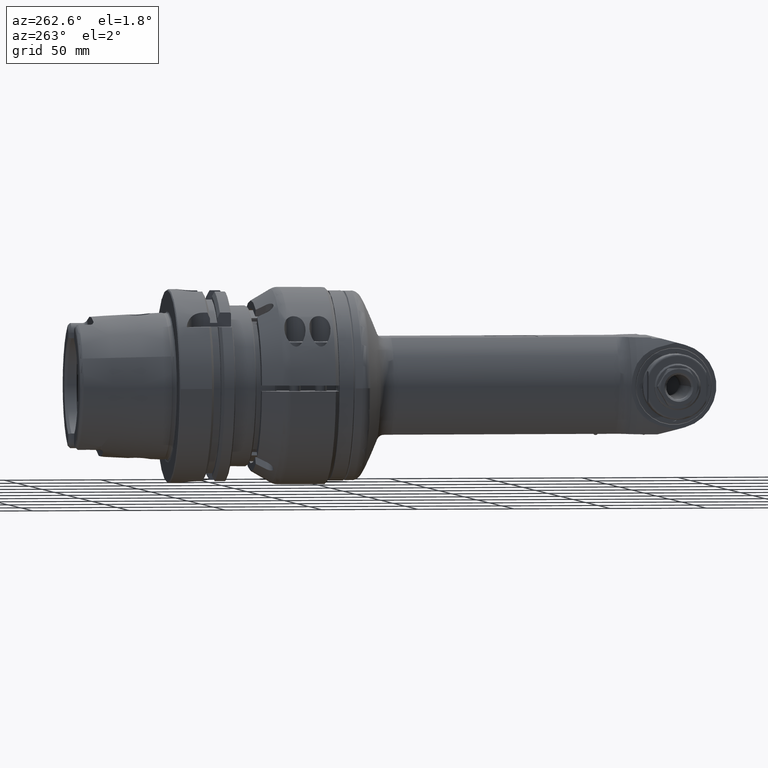
[diagram: clean part render]
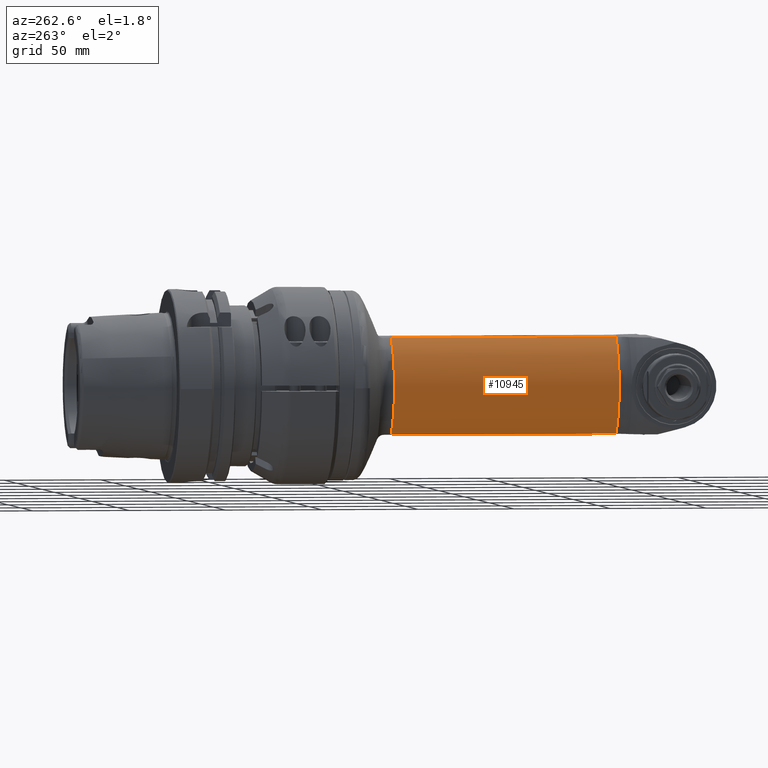
[diagram: same view with one face highlighted and labeled with its STEP entity id]
A machine part, auxiliary view. The second image highlights one B-rep face of the part: STEP entity #10945.
In plain terms, the highlighted cylindrical surface (partial cylindrical patch) has radius 30 mm, axis along (-0, 1, 0).
Its self-contained STEP definition (entity closure, byte-faithful):
#520=CYLINDRICAL_SURFACE('',#11695,30.);
#852=CIRCLE('',#11694,30.);
#853=CIRCLE('',#11696,30.);
#1352=FACE_OUTER_BOUND('',#1976,.T.);
#1976=EDGE_LOOP('',(#7576,#7577,#7578,#7579));
#2666=LINE('',#16193,#3548);
#2674=LINE('',#16377,#3556);
#3548=VECTOR('',#12996,116.7720146362);
#3556=VECTOR('',#13036,116.7720146362);
#4480=VERTEX_POINT('',#16183);
#4481=VERTEX_POINT('',#16192);
#4510=VERTEX_POINT('',#16354);
#4512=VERTEX_POINT('',#16376);
#5717=EDGE_CURVE('',#4481,#4480,#2666,.T.);
#5751=EDGE_CURVE('',#4510,#4480,#852,.T.);
#5754=EDGE_CURVE('',#4510,#4512,#2674,.T.);
#5755=EDGE_CURVE('',#4481,#4512,#853,.T.);
#7576=ORIENTED_EDGE('',*,*,#5751,.F.);
#7577=ORIENTED_EDGE('',*,*,#5754,.T.);
#7578=ORIENTED_EDGE('',*,*,#5755,.F.);
#7579=ORIENTED_EDGE('',*,*,#5717,.T.);
#10945=ADVANCED_FACE('',(#1352),#520,.T.);
#11694=AXIS2_PLACEMENT_3D('',#16355,#13032,#13033);
#11695=AXIS2_PLACEMENT_3D('',#16375,#13034,#13035);
#11696=AXIS2_PLACEMENT_3D('',#16378,#13037,#13038);
#12996=DIRECTION('',(-1.,0.,0.));
#13032=DIRECTION('center_axis',(-1.,0.,0.));
#13033=DIRECTION('ref_axis',(0.,-0.552770798392605,-0.833333333333308));
#13034=DIRECTION('center_axis',(-1.,0.,0.));
#13035=DIRECTION('ref_axis',(0.,-1.,-1.22464679914735E-16));
#13036=DIRECTION('',(1.,0.,0.));
#13037=DIRECTION('center_axis',(1.,0.,0.));
#13038=DIRECTION('ref_axis',(0.,-1.,0.));
#16183=CARTESIAN_POINT('',(35.16580758197,-16.58312395178,25.));
#16192=CARTESIAN_POINT('',(151.9378222182,-16.58312395178,25.));
#16193=CARTESIAN_POINT('',(151.9378222182,-16.58312395178,25.));
#16354=CARTESIAN_POINT('',(35.16580758197,-16.58312395178,-25.));
#16355=CARTESIAN_POINT('Origin',(35.16580758197,0.,0.));
#16375=CARTESIAN_POINT('Origin',(144.9744646309,0.,0.));
#16376=CARTESIAN_POINT('',(151.9378222182,-16.58312395178,-25.));
#16377=CARTESIAN_POINT('',(35.16580758197,-16.58312395178,-25.));
#16378=CARTESIAN_POINT('Origin',(151.9378222182,0.,0.));